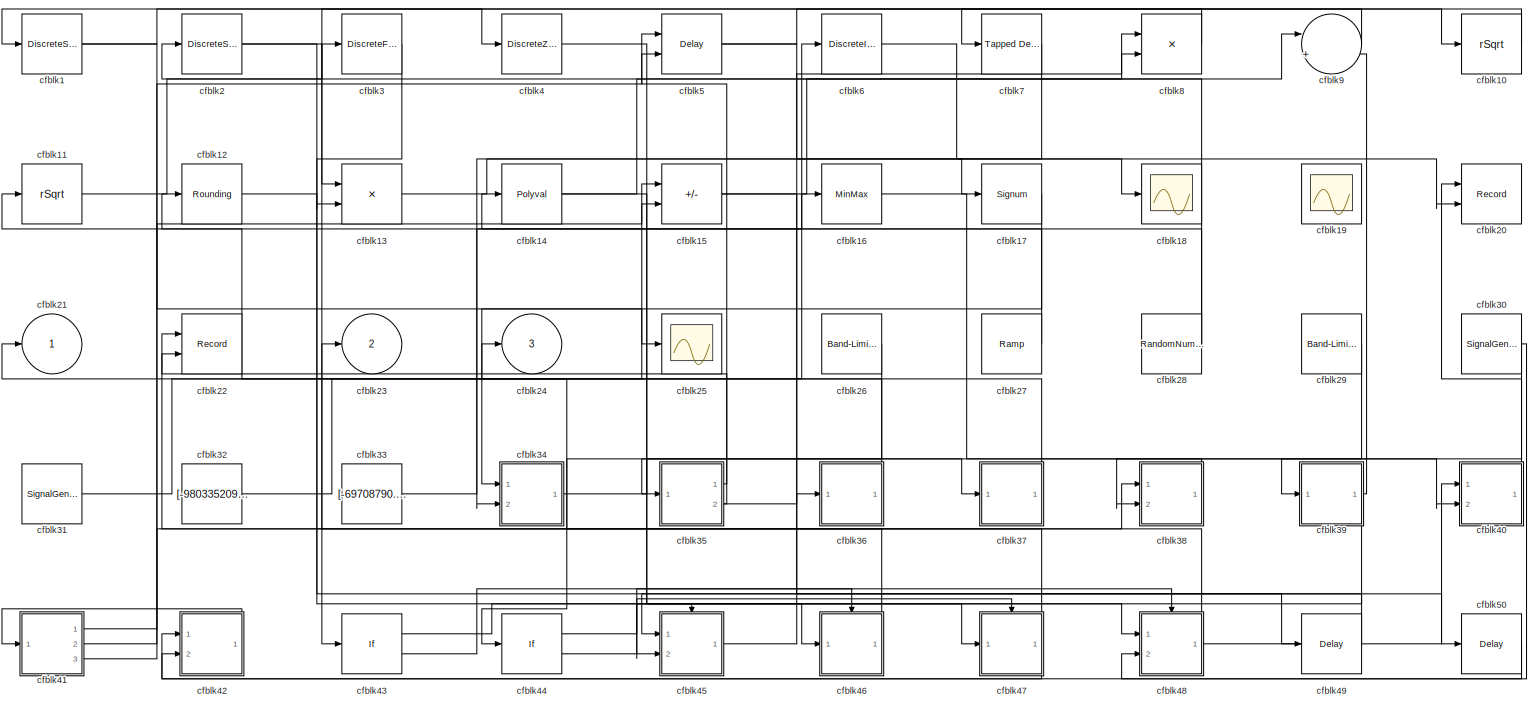
[diagram: root canvas - part 1/1, most of the canvas]
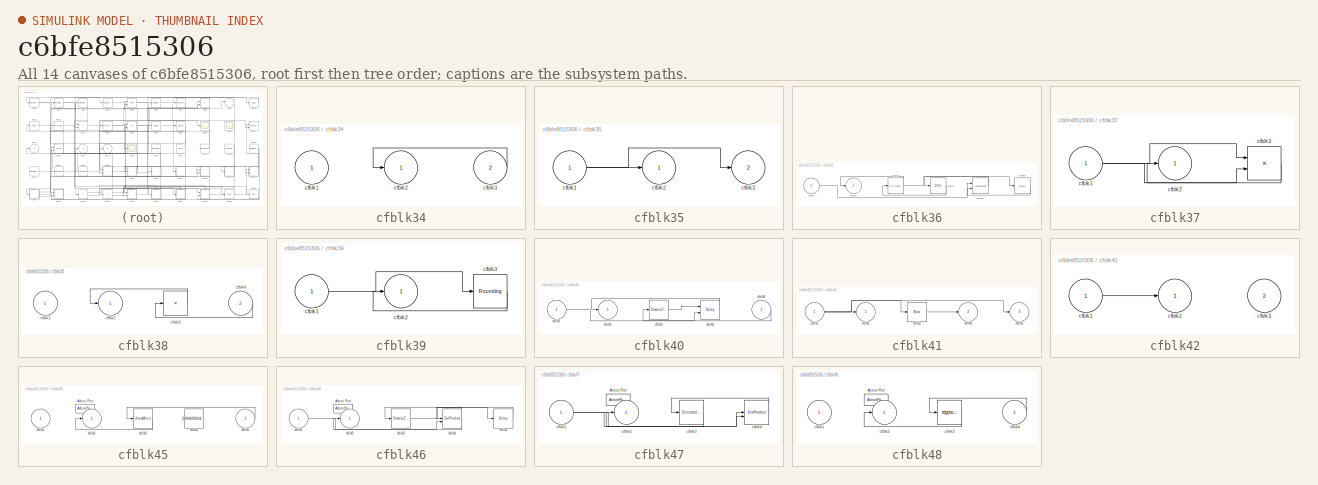
[diagram: thumbnail index - all 14 canvases of the model, root first then tree order]
MODEL slx_c6bfe8515306
KIND model
CONFIG AbsTol = auto
CONFIG EnableMultiTasking = off
CONFIG FixedStep = auto
CONFIG MaxStep = auto
CONFIG MinStep = auto
CONFIG RelTol = 1e-3
CONFIG SampleTimeConstraint = Unconstrained
CONFIG SolverName = VariableStepAuto
CONFIG StartTime = 0.0
CONFIG StopTime = 10.0
BLOCK [DiscreteStateSpace] cfblk1
BLOCK [Sqrt] cfblk10
  AlgorithmType = Newton-Raphson
  Operator = rSqrt
BLOCK [Sqrt] cfblk11
  AlgorithmType = Newton-Raphson
  Operator = rSqrt
BLOCK [Rounding] cfblk12
BLOCK [Product] cfblk13
  Inputs = **
  Ports = [2, 1]
BLOCK [Polyval] cfblk14
  Coefs = [ +2.081618890e-019, -1.441693666e-014, +4.719686976e-010, -8.536869453e-006, +1.621573104e-001, -8.087801117e+001 ]
BLOCK [Sum] cfblk15
  IconShape = rectangular
  Inputs = +-
  Ports = [2, 1]
BLOCK [MinMax] cfblk16
  Function = max
  Ports = [1, 1]
BLOCK [Signum] cfblk17
BLOCK [Scope] cfblk18
  Floating = off
  NumInputPorts = 1
  Ports = [1]
BLOCK [Scope] cfblk19
  Floating = on
  NumInputPorts = 1
  Ports = []
BLOCK [DiscreteStateSpace] cfblk2
BLOCK [Record] cfblk20
  CompatibilityTag = XY
  FileSettingsInternal = {"entries":[{"content":{"excelSettings":{"content":{},"type":"Streamout.ExcelSettings"}},"type":"Streamout.FileSettingStorage","uuid":"c6a0a69c-cb25-483f-9436-b518442c183b"}],"packageUris":["http://schema.mathworks.com/mf0/streamout_blocks/R2020a"],"version":"1.0"}
  Layout = [1 1]
  Ports = [2]
  SignalsInternal = {"entries":[{"content":{"signals":[{"content":{"blockPath":["sampleModel155/cfblk20"],"channel":[],"dimensions":[1],"domain":"sampleModel155/cfblk20","lineColor":"#a2142f","plots":[1],"port":1,"sid":[""],"signalID":5829,"signalName":"cfblk40"},"type":"RecordBlkView.Signal","uuid":"982e78fb-ecc7-4af2-9bce-bf19e89cf4a4"},{"content":{"blockPath":["sampleModel155/cfblk20"],"channel":[],"dimensions":[1...<+382ch>
  VisualizationBindings = {"xyplotplugin":{"info":[{"series":[{"bindingParametersList":[{"parameter":"X-Axis","signalID":5829,"signalName":"cfblk40"},{"parameter":"Y-Axis","signalID":5833,"signalName":"cfblk6"}],"seriesID":42704}],"subplotID":1}]}}
BLOCK [Outport] cfblk21
BLOCK [Record] cfblk22
  CompatibilityTag = XY
  FileSettingsInternal = {"entries":[{"content":{"excelSettings":{"content":{},"type":"Streamout.ExcelSettings"}},"type":"Streamout.FileSettingStorage","uuid":"4d11d9fd-29c9-4ce8-99ba-2382077eddbc"}],"packageUris":["http://schema.mathworks.com/mf0/streamout_blocks/R2020a"],"version":"1.0"}
  Layout = [1 1]
  Ports = [2]
  SignalsInternal = {"entries":[{"content":{"signals":[{"content":{"blockPath":["sampleModel155/cfblk22"],"channel":[],"dimensions":[1],"domain":"sampleModel155/cfblk22","lineColor":"#a2142f","plots":[1],"port":1,"sid":[""],"signalID":5837,"signalName":"cfblk35:2"},"type":"RecordBlkView.Signal","uuid":"607973d4-97f1-4e95-a130-668d98db00e6"},{"content":{"blockPath":["sampleModel155/cfblk22"],"channel":[],"dimensions":...<+385ch>
  VisualizationBindings = {"xyplotplugin":{"info":[{"series":[{"bindingParametersList":[{"parameter":"X-Axis","signalID":5837,"signalName":"cfblk35:2"},{"parameter":"Y-Axis","signalID":5841,"signalName":"cfblk48"}],"seriesID":8769}],"subplotID":1}]}}
BLOCK [Outport] cfblk23
  Port = 2
BLOCK [Outport] cfblk24
  Port = 3
BLOCK [Scope] cfblk25
  Floating = off
  NumInputPorts = 1
  Ports = [1]
BLOCK [Reference] cfblk26  REF=simulink/Sources/Band-Limited
White Noise
  Ports = [0, 1]
  SourceBlock = simulink/Sources/Band-Limited\nWhite Noise
  SourceProductBaseCode = SL
  SourceType = Band-Limited White Noise.
BLOCK [Reference] cfblk27  REF=simulink/Sources/Ramp
  Ports = [0, 1]
  SourceBlock = simulink/Sources/Ramp
  SourceProductBaseCode = SL
  SourceType = Ramp
BLOCK [RandomNumber] cfblk28
  Mean = [-62257.725679]
  SampleTime = 0.1
  Seed = [583175511.000000]
  Variance = [20771.732840]
BLOCK [Reference] cfblk29  REF=simulink/Sources/Band-Limited
White Noise
  Ports = [0, 1]
  SourceBlock = simulink/Sources/Band-Limited\nWhite Noise
  SourceProductBaseCode = SL
  SourceType = Band-Limited White Noise.
BLOCK [DiscreteFilter] cfblk3
  InputPortMap = u0
  Ports = [1, 1]
  SampleTime = 1
BLOCK [SignalGenerator] cfblk30
  Amplitude = [-532353384.064106]
  Ports = [0, 1]
BLOCK [SignalGenerator] cfblk31
  Amplitude = [-996285201.899179]
  Ports = [0, 1]
  Units = rad/sec
  WaveForm = sawtooth
BLOCK [Constant] cfblk32
  SampleTime = 1
  Value = [-980335209.208361]
BLOCK [Constant] cfblk33
  SampleTime = 1
  Value = [-69708790.017144]
BLOCK [SubSystem] cfblk34
  Ports = [2, 1]
  RequestExecContextInheritance = off
BLOCK [Inport] cfblk34/cfblk1
BLOCK [Outport] cfblk34/cfblk2
BLOCK [Inport] cfblk34/cfblk3
  Port = 2
BLOCK [SubSystem] cfblk35
  Ports = [1, 2]
  RequestExecContextInheritance = off
BLOCK [Inport] cfblk35/cfblk1
BLOCK [Outport] cfblk35/cfblk2
BLOCK [Outport] cfblk35/cfblk3
  Port = 2
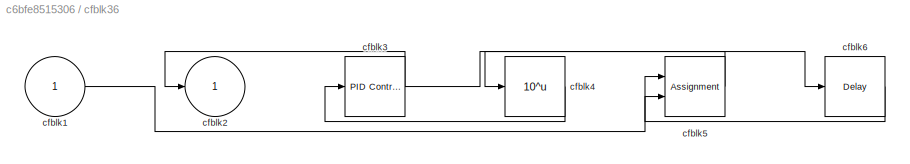
BLOCK [SubSystem] cfblk36
  Ports = [1, 1]
  RequestExecContextInheritance = off
BLOCK [Inport] cfblk36/cfblk1
BLOCK [Outport] cfblk36/cfblk2
BLOCK [Reference] cfblk36/cfblk3  REF=slpidlib/PID Controller
  Ports = [1, 1]
  SourceBlock = slpidlib/PID Controller
  SourceProductBaseCode = SL
  SourceType = PID 1dof
BLOCK [Math] cfblk36/cfblk4
  Operator = 10^u
  Ports = [1, 1]
BLOCK [Assignment] cfblk36/cfblk5
  DiagnosticForDimensions = Warning
  IndexOptions = Index vector (dialog)
  Indices = 1
  OutputSizes = 1
  Ports = [2, 1]
BLOCK [Delay] cfblk36/cfblk6
  InputPortMap = u0
  Ports = [1, 1]
  SampleTime = 1
BLOCK [SubSystem] cfblk37
  Ports = [1, 1]
  RequestExecContextInheritance = off
BLOCK [Inport] cfblk37/cfblk1
BLOCK [Outport] cfblk37/cfblk2
BLOCK [Product] cfblk37/cfblk3
  Inputs = **
  Ports = [2, 1]
BLOCK [SubSystem] cfblk38
  Ports = [2, 1]
  RequestExecContextInheritance = off
BLOCK [Inport] cfblk38/cfblk1
BLOCK [Outport] cfblk38/cfblk2
BLOCK [Product] cfblk38/cfblk3
  Inputs = *
  Ports = [1, 1]
BLOCK [Inport] cfblk38/cfblk4
  Port = 2
BLOCK [SubSystem] cfblk39
  Ports = [1, 1]
  RequestExecContextInheritance = off
BLOCK [Inport] cfblk39/cfblk1
BLOCK [Outport] cfblk39/cfblk2
BLOCK [Rounding] cfblk39/cfblk3
BLOCK [DiscreteZeroPole] cfblk4
  Gain = 1
  Poles = [0 0.5]
BLOCK [SubSystem] cfblk40
  Ports = [2, 1]
  RequestExecContextInheritance = off
BLOCK [Inport] cfblk40/cfblk1
BLOCK [Outport] cfblk40/cfblk2
BLOCK [DiscreteFir] cfblk40/cfblk3
  InputPortMap = u0
  OutputPortMap = o0
  Ports = [1, 1]
  SampleTime = 1
BLOCK [Delay] cfblk40/cfblk4
  InputPortMap = u0,e6
  Ports = [2, 1]
  SampleTime = 1
  ShowEnablePort = on
BLOCK [Inport] cfblk40/cfblk5
  Port = 2
BLOCK [SubSystem] cfblk41
  Ports = [1, 3]
  RequestExecContextInheritance = off
BLOCK [Inport] cfblk41/cfblk1
BLOCK [Outport] cfblk41/cfblk2
BLOCK [Bias] cfblk41/cfblk3
  Bias = [-166391884.064929]
  SaturateOnIntegerOverflow = off
BLOCK [Outport] cfblk41/cfblk4
  Port = 2
BLOCK [Outport] cfblk41/cfblk5
  Port = 3
BLOCK [SubSystem] cfblk42
  Ports = [2, 1]
  RequestExecContextInheritance = off
BLOCK [Inport] cfblk42/cfblk1
BLOCK [Outport] cfblk42/cfblk2
BLOCK [Inport] cfblk42/cfblk3
  Port = 2
BLOCK [If] cfblk43
  IfExpression = u1 >= 0
  Ports = [1, 2]
  SampleTime = 1
BLOCK [If] cfblk44
  IfExpression = u1 >= 0
  Ports = [1, 2]
  SampleTime = 1
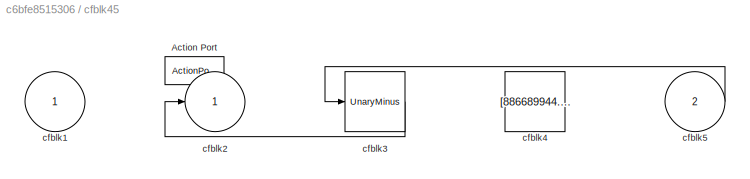
BLOCK [SubSystem] cfblk45
  Ports = [2, 1, 0, 0, 0, 0, 0, 1]
  RequestExecContextInheritance = off
  TreatAsAtomicUnit = on
BLOCK [ActionPort] cfblk45/Action Port
  ActionPortLabel = if(u1 >= 0)
BLOCK [Inport] cfblk45/cfblk1
BLOCK [Outport] cfblk45/cfblk2
BLOCK [UnaryMinus] cfblk45/cfblk3
BLOCK [Constant] cfblk45/cfblk4
  SampleTime = 1
  Value = [886689944.562693]
BLOCK [Inport] cfblk45/cfblk5
  Port = 2
BLOCK [SubSystem] cfblk46
  Ports = [1, 1, 0, 0, 0, 0, 0, 1]
  RequestExecContextInheritance = off
  TreatAsAtomicUnit = on
BLOCK [ActionPort] cfblk46/Action Port
  ActionPortLabel = else
BLOCK [Inport] cfblk46/cfblk1
BLOCK [Outport] cfblk46/cfblk2
BLOCK [DiscreteZeroPole] cfblk46/cfblk3
  Gain = 1
  Poles = [0 0.5]
  SampleTime = -1
BLOCK [DotProduct] cfblk46/cfblk4
  OutDataTypeStr = Inherit: Inherit via internal rule
BLOCK [Delay] cfblk46/cfblk5
  InputPortMap = u0
  Ports = [1, 1]
BLOCK [SubSystem] cfblk47
  Ports = [1, 1, 0, 0, 0, 0, 0, 1]
  RequestExecContextInheritance = off
  TreatAsAtomicUnit = on
BLOCK [ActionPort] cfblk47/Action Port
  ActionPortLabel = if(u1 >= 0)
BLOCK [Inport] cfblk47/cfblk1
BLOCK [Outport] cfblk47/cfblk2
BLOCK [DiscreteIntegrator] cfblk47/cfblk3
  ICPrevOutput = DiscIntNeverNeededParam
  ICPrevScaledInput = DiscIntNeverNeededParam
  InitialConditionSetting = Auto
  Ports = [1, 1]
  SampleTime = -1
BLOCK [DotProduct] cfblk47/cfblk4
  OutDataTypeStr = Inherit: Inherit via internal rule
BLOCK [SubSystem] cfblk48
  Ports = [2, 1, 0, 0, 0, 0, 0, 1]
  RequestExecContextInheritance = off
  TreatAsAtomicUnit = on
BLOCK [ActionPort] cfblk48/Action Port
  ActionPortLabel = else
BLOCK [Inport] cfblk48/cfblk1
BLOCK [Outport] cfblk48/cfblk2
BLOCK [Trigonometry] cfblk48/cfblk3
  Ports = [1, 1]
BLOCK [Inport] cfblk48/cfblk4
  Port = 2
BLOCK [Delay] cfblk49
  InputPortMap = u0
  Ports = [1, 1]
  SampleTime = 1
BLOCK [Delay] cfblk5
  DelayLengthSource = Input port
  InputPortMap = u0,p1
  Ports = [2, 1]
  SampleTime = 1
BLOCK [Delay] cfblk50
  InputPortMap = u0
  Ports = [1, 1]
  SampleTime = 1
BLOCK [DiscreteIntegrator] cfblk6
  ICPrevOutput = DiscIntNeverNeededParam
  ICPrevScaledInput = DiscIntNeverNeededParam
  InitialConditionSetting = Auto
  Ports = [1, 1]
BLOCK [Reference] cfblk7  REF=simulink/Discrete/Tapped Delay
  Ports = [1, 1]
  SourceBlock = simulink/Discrete/Tapped Delay
  SourceProductBaseCode = SL
  SourceType = Tapped Delay Line
BLOCK [Product] cfblk8
  Ports = [2, 1]
BLOCK [Sum] cfblk9
  Inputs = |++
  Ports = [2, 1]
LINE cfblk10:1 -> cfblk43:1
LINE cfblk11:1 -> cfblk3:1
LINE cfblk12:1 -> cfblk49:1
LINE cfblk13:1 -> cfblk18:1
NET cfblk14:1 -> cfblk46:1, cfblk8:2
NET cfblk15:1 -> cfblk50:1, cfblk9:1
LINE cfblk16:1 -> cfblk40:2
LINE cfblk17:1 -> cfblk34:1
NET cfblk1:1 -> cfblk25:1, cfblk4:1
LINE cfblk26:1 -> cfblk44:1
LINE cfblk27:1 -> cfblk11:1
NET cfblk28:1 -> cfblk14:1, cfblk2:1
LINE cfblk29:1 -> cfblk39:1
NET cfblk2:1 -> cfblk13:1, cfblk47:1
NET cfblk30:1 -> cfblk38:2, cfblk42:1
LINE cfblk31:1 -> cfblk6:1
LINE cfblk32:1 -> cfblk15:1
LINE cfblk33:1 -> cfblk16:1
LINE cfblk34/cfblk3:1 -> cfblk34/cfblk2:1
LINE cfblk34:1 -> cfblk37:1
NET cfblk35/cfblk1:1 -> cfblk35/cfblk2:1, cfblk35/cfblk3:1
LINE cfblk35:1 -> cfblk5:2
NET cfblk35:2 -> cfblk22:1, cfblk8:1
LINE cfblk36/cfblk1:1 -> cfblk36/cfblk5:1
NET cfblk36/cfblk3:1 -> cfblk36/cfblk2:1, cfblk36/cfblk6:1
LINE cfblk36/cfblk4:1 -> cfblk36/cfblk3:1
LINE cfblk36/cfblk5:1 -> cfblk36/cfblk4:1
LINE cfblk36/cfblk6:1 -> cfblk36/cfblk5:2
LINE cfblk36:1 -> cfblk12:1
NET cfblk37/cfblk1:1 -> cfblk37/cfblk3:1, cfblk37/cfblk3:2
LINE cfblk37/cfblk3:1 -> cfblk37/cfblk2:1
LINE cfblk37:1 -> cfblk21:1
LINE cfblk38/cfblk3:1 -> cfblk38/cfblk2:1
LINE cfblk38/cfblk4:1 -> cfblk38/cfblk3:1
LINE cfblk38:1 -> cfblk35:1
LINE cfblk39/cfblk1:1 -> cfblk39/cfblk3:1
LINE cfblk39/cfblk3:1 -> cfblk39/cfblk2:1
NET cfblk39:1 -> cfblk45:2, cfblk9:2
LINE cfblk3:1 -> cfblk13:2
LINE cfblk40/cfblk1:1 -> cfblk40/cfblk4:2
LINE cfblk40/cfblk3:1 -> cfblk40/cfblk4:1
LINE cfblk40/cfblk4:1 -> cfblk40/cfblk2:1
LINE cfblk40/cfblk5:1 -> cfblk40/cfblk3:1
LINE cfblk40:1 -> cfblk20:1
NET cfblk41/cfblk1:1 -> cfblk41/cfblk2:1, cfblk41/cfblk3:1, cfblk41/cfblk5:1
LINE cfblk41/cfblk3:1 -> cfblk41/cfblk4:1
LINE cfblk41:1 -> cfblk5:1
LINE cfblk41:2 -> cfblk38:1
LINE cfblk41:3 -> cfblk15:2
LINE cfblk42/cfblk1:1 -> cfblk42/cfblk2:1
LINE cfblk42:1 -> cfblk41:1
LINE cfblk43:1 -> cfblk45:ifaction
LINE cfblk43:2 -> cfblk46:ifaction
LINE cfblk44:1 -> cfblk47:ifaction
LINE cfblk44:2 -> cfblk48:ifaction
LINE cfblk45/cfblk3:1 -> cfblk45/cfblk2:1
LINE cfblk45/cfblk5:1 -> cfblk45/cfblk3:1
LINE cfblk45:1 -> cfblk36:1
LINE cfblk46/cfblk1:1 -> cfblk46/cfblk4:2
LINE cfblk46/cfblk3:1 -> cfblk46/cfblk5:1
NET cfblk46/cfblk4:1 -> cfblk46/cfblk2:1, cfblk46/cfblk3:1
LINE cfblk46/cfblk5:1 -> cfblk46/cfblk4:1
LINE cfblk46:1 -> cfblk23:1
NET cfblk47/cfblk1:1 -> cfblk47/cfblk4:1, cfblk47/cfblk4:2
LINE cfblk47/cfblk3:1 -> cfblk47/cfblk2:1
LINE cfblk47/cfblk4:1 -> cfblk47/cfblk3:1
NET cfblk47:1 -> cfblk24:1, cfblk42:2
LINE cfblk48/cfblk3:1 -> cfblk48/cfblk2:1
LINE cfblk48/cfblk4:1 -> cfblk48/cfblk3:1
NET cfblk48:1 -> cfblk22:2, cfblk40:1
LINE cfblk49:1 -> cfblk45:1
LINE cfblk4:1 -> cfblk48:1
LINE cfblk50:1 -> cfblk48:2
NET cfblk5:1 -> cfblk10:1, cfblk17:1
LINE cfblk6:1 -> cfblk20:2
LINE cfblk7:1 -> cfblk34:2
LINE cfblk8:1 -> cfblk1:1
LINE cfblk9:1 -> cfblk7:1
note: NET lines group one-source signal fan-out (src -> all destinations, sorted); 1:1 wires keep LINE
